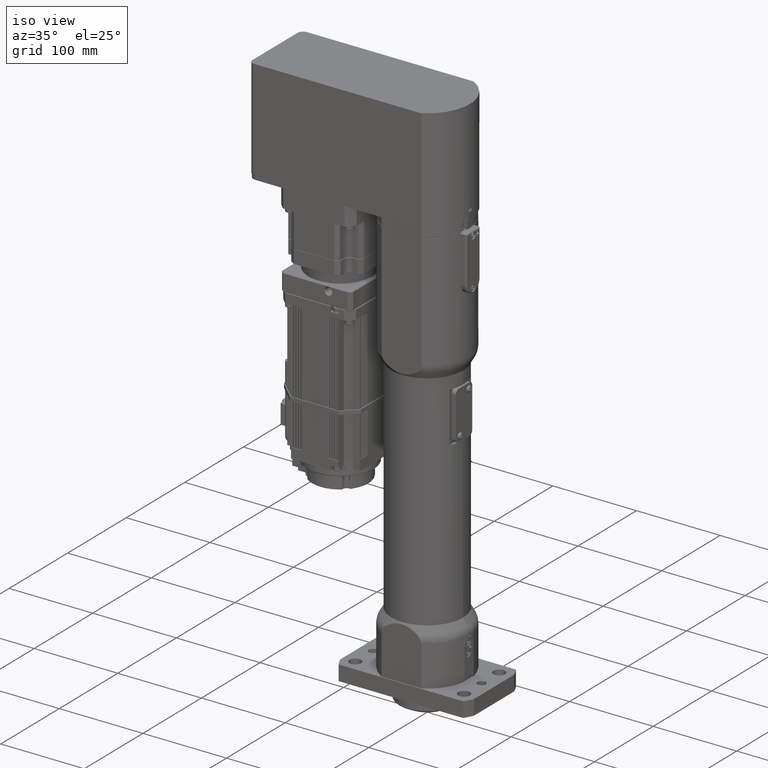
[diagram: clean part render]
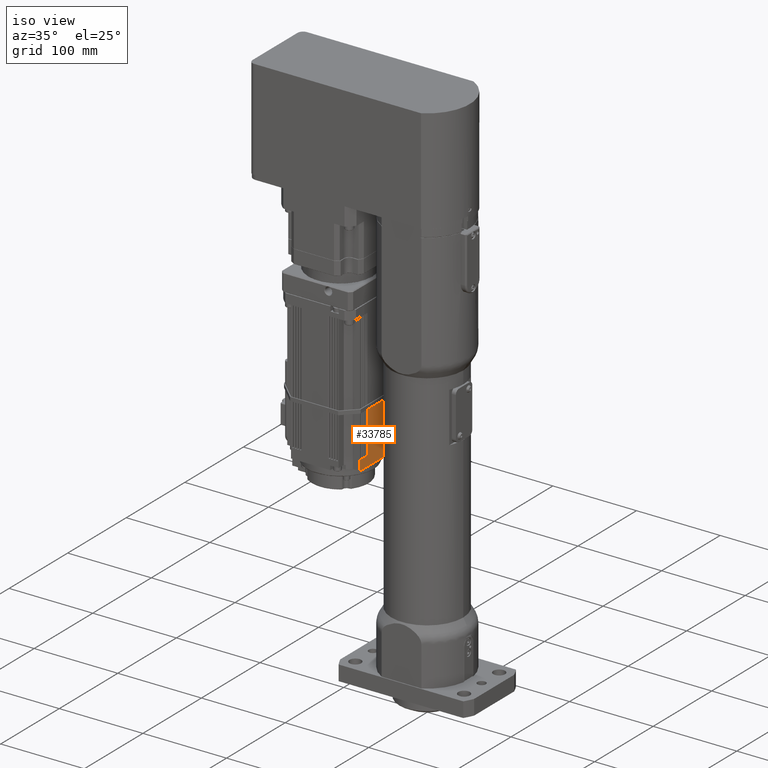
[diagram: same view with one face highlighted and labeled with its STEP entity id]
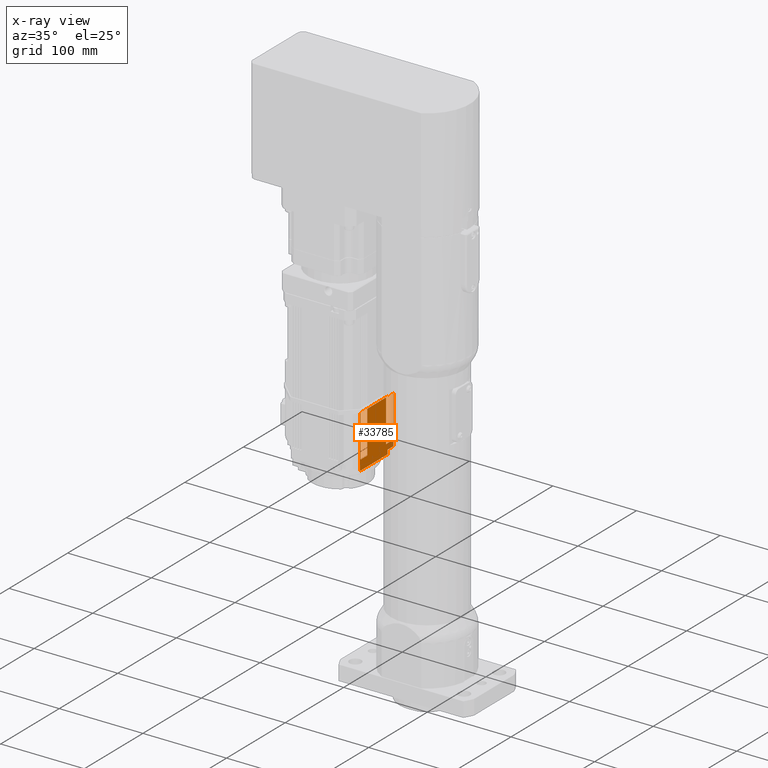
[diagram: x-ray of the same camera — body ghosted, the highlighted face saturated]
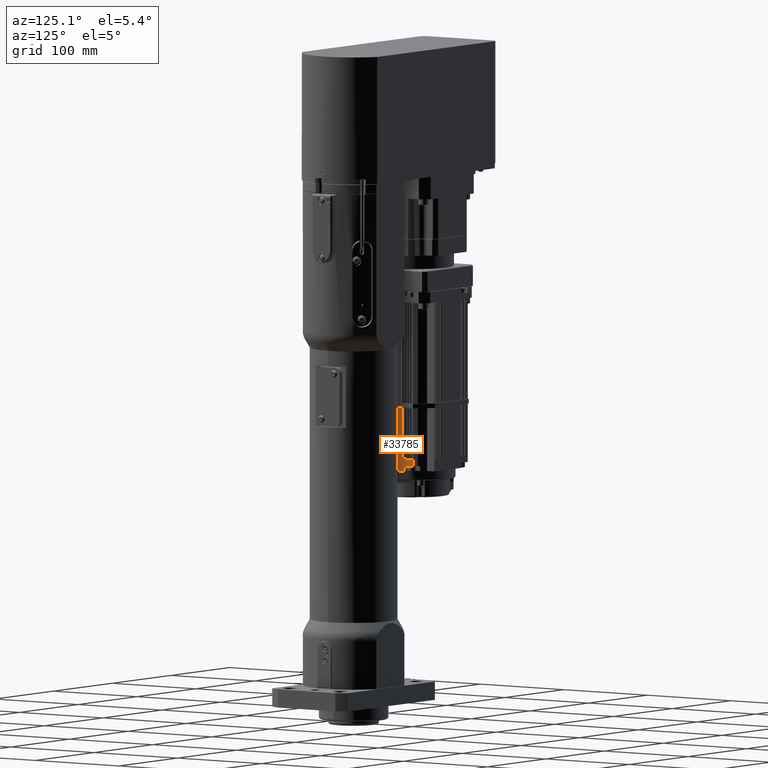
[diagram: same view with one face highlighted and labeled with its STEP entity id]
A machine part, iso view. The second image highlights one B-rep face of the part: STEP entity #33785.
The next image is the same camera in x-ray: the body ghosted, the highlighted face saturated — about 6% of this face is hidden behind the body in this view.
A second angle (auxiliary view) of the same face is appended — the face is thin or edge-on in the first view.
In plain terms, the highlighted planar face has unit normal (1, -0, -0).
Its self-contained STEP definition (entity closure, byte-faithful):
#744=PLANE('',#35872);
#2214=FACE_OUTER_BOUND('',#4037,.T.);
#4037=EDGE_LOOP('',(#22657,#22658,#22659,#22660,#22661,#22662,#22663,#22664,
#22665,#22666,#22667,#22668,#22669,#22670,#22671,#22672,#22673,#22674,#22675,
#22676,#22677,#22678,#22679,#22680,#22681,#22682,#22683,#22684,#22685,#22686,
#22687,#22688,#22689,#22690,#22691,#22692,#22693,#22694));
#8056=LINE('',#51097,#10752);
#8057=LINE('',#51098,#10753);
#8058=LINE('',#51099,#10754);
#8059=LINE('',#51100,#10755);
#8060=LINE('',#51101,#10756);
#8061=LINE('',#51102,#10757);
#8062=LINE('',#51103,#10758);
#8063=LINE('',#51104,#10759);
#8064=LINE('',#51106,#10760);
#8173=LINE('',#51316,#10869);
#8174=LINE('',#51319,#10870);
#8175=LINE('',#51321,#10871);
#8176=LINE('',#51322,#10872);
#8177=LINE('',#51324,#10873);
#8178=LINE('',#51326,#10874);
#8179=LINE('',#51328,#10875);
#8180=LINE('',#51329,#10876);
#8181=LINE('',#51331,#10877);
#8182=LINE('',#51333,#10878);
#8183=LINE('',#51334,#10879);
#8184=LINE('',#51336,#10880);
#8185=LINE('',#51338,#10881);
#8186=LINE('',#51339,#10882);
#8187=LINE('',#51341,#10883);
#8188=LINE('',#51343,#10884);
#8189=LINE('',#51344,#10885);
#8190=LINE('',#51346,#10886);
#8191=LINE('',#51348,#10887);
#8192=LINE('',#51349,#10888);
#8193=LINE('',#51351,#10889);
#8194=LINE('',#51353,#10890);
#8195=LINE('',#51354,#10891);
#8196=LINE('',#51356,#10892);
#8197=LINE('',#51358,#10893);
#8198=LINE('',#51359,#10894);
#8199=LINE('',#51361,#10895);
#8200=LINE('',#51363,#10896);
#8201=LINE('',#51364,#10897);
#10752=VECTOR('',#40334,10.);
#10753=VECTOR('',#40335,10.);
#10754=VECTOR('',#40336,10.);
#10755=VECTOR('',#40337,10.);
#10756=VECTOR('',#40338,10.);
#10757=VECTOR('',#40339,10.);
#10758=VECTOR('',#40340,10.);
#10759=VECTOR('',#40341,10.);
#10760=VECTOR('',#40342,10.);
#10869=VECTOR('',#40473,10.);
#10870=VECTOR('',#40476,10.);
#10871=VECTOR('',#40477,10.);
#10872=VECTOR('',#40478,10.);
#10873=VECTOR('',#40479,10.);
#10874=VECTOR('',#40480,10.);
#10875=VECTOR('',#40481,10.);
#10876=VECTOR('',#40482,10.);
#10877=VECTOR('',#40483,10.);
#10878=VECTOR('',#40484,10.);
#10879=VECTOR('',#40485,10.);
#10880=VECTOR('',#40486,10.);
#10881=VECTOR('',#40487,10.);
#10882=VECTOR('',#40488,10.);
#10883=VECTOR('',#40489,10.);
#10884=VECTOR('',#40490,10.);
#10885=VECTOR('',#40491,10.);
#10886=VECTOR('',#40492,10.);
#10887=VECTOR('',#40493,10.);
#10888=VECTOR('',#40494,10.);
#10889=VECTOR('',#40495,10.);
#10890=VECTOR('',#40496,10.);
#10891=VECTOR('',#40497,10.);
#10892=VECTOR('',#40498,10.);
#10893=VECTOR('',#40499,10.);
#10894=VECTOR('',#40500,10.);
#10895=VECTOR('',#40501,10.);
#10896=VECTOR('',#40502,10.);
#10897=VECTOR('',#40503,10.);
#13443=VERTEX_POINT('',#50710);
#13445=VERTEX_POINT('',#50714);
#13447=VERTEX_POINT('',#50719);
#13449=VERTEX_POINT('',#50723);
#13451=VERTEX_POINT('',#50728);
#13453=VERTEX_POINT('',#50732);
#13455=VERTEX_POINT('',#50737);
#13457=VERTEX_POINT('',#50741);
#13459=VERTEX_POINT('',#50746);
#13461=VERTEX_POINT('',#50750);
#13463=VERTEX_POINT('',#50755);
#13465=VERTEX_POINT('',#50759);
#13467=VERTEX_POINT('',#50764);
#13469=VERTEX_POINT('',#50768);
#13470=VERTEX_POINT('',#50772);
#13472=VERTEX_POINT('',#50775);
#13580=VERTEX_POINT('',#51095);
#13581=VERTEX_POINT('',#51105);
#13653=VERTEX_POINT('',#51314);
#13654=VERTEX_POINT('',#51318);
#13655=VERTEX_POINT('',#51320);
#13656=VERTEX_POINT('',#51323);
#13657=VERTEX_POINT('',#51325);
#13658=VERTEX_POINT('',#51327);
#13659=VERTEX_POINT('',#51330);
#13660=VERTEX_POINT('',#51332);
#13661=VERTEX_POINT('',#51335);
#13662=VERTEX_POINT('',#51337);
#13663=VERTEX_POINT('',#51340);
#13664=VERTEX_POINT('',#51342);
#13665=VERTEX_POINT('',#51345);
#13666=VERTEX_POINT('',#51347);
#13667=VERTEX_POINT('',#51350);
#13668=VERTEX_POINT('',#51352);
#13669=VERTEX_POINT('',#51355);
#13670=VERTEX_POINT('',#51357);
#13671=VERTEX_POINT('',#51360);
#13672=VERTEX_POINT('',#51362);
#17072=EDGE_CURVE('',#13472,#13580,#8056,.T.);
#17073=EDGE_CURVE('',#13467,#13470,#8057,.T.);
#17074=EDGE_CURVE('',#13463,#13469,#8058,.T.);
#17075=EDGE_CURVE('',#13459,#13465,#8059,.T.);
#17076=EDGE_CURVE('',#13455,#13461,#8060,.T.);
#17077=EDGE_CURVE('',#13451,#13457,#8061,.T.);
#17078=EDGE_CURVE('',#13447,#13453,#8062,.T.);
#17079=EDGE_CURVE('',#13443,#13449,#8063,.T.);
#17080=EDGE_CURVE('',#13581,#13445,#8064,.T.);
#17196=EDGE_CURVE('',#13580,#13653,#8173,.T.);
#17197=EDGE_CURVE('',#13654,#13470,#8174,.T.);
#17198=EDGE_CURVE('',#13654,#13655,#8175,.T.);
#17199=EDGE_CURVE('',#13472,#13655,#8176,.T.);
#17200=EDGE_CURVE('',#13656,#13653,#8177,.T.);
#17201=EDGE_CURVE('',#13656,#13657,#8178,.T.);
#17202=EDGE_CURVE('',#13657,#13658,#8179,.T.);
#17203=EDGE_CURVE('',#13658,#13581,#8180,.T.);
#17204=EDGE_CURVE('',#13659,#13445,#8181,.T.);
#17205=EDGE_CURVE('',#13659,#13660,#8182,.T.);
#17206=EDGE_CURVE('',#13443,#13660,#8183,.T.);
#17207=EDGE_CURVE('',#13661,#13449,#8184,.T.);
#17208=EDGE_CURVE('',#13661,#13662,#8185,.T.);
#17209=EDGE_CURVE('',#13447,#13662,#8186,.T.);
#17210=EDGE_CURVE('',#13663,#13453,#8187,.T.);
#17211=EDGE_CURVE('',#13663,#13664,#8188,.T.);
#17212=EDGE_CURVE('',#13451,#13664,#8189,.T.);
#17213=EDGE_CURVE('',#13665,#13457,#8190,.T.);
#17214=EDGE_CURVE('',#13665,#13666,#8191,.T.);
#17215=EDGE_CURVE('',#13455,#13666,#8192,.T.);
#17216=EDGE_CURVE('',#13667,#13461,#8193,.T.);
#17217=EDGE_CURVE('',#13667,#13668,#8194,.T.);
#17218=EDGE_CURVE('',#13459,#13668,#8195,.T.);
#17219=EDGE_CURVE('',#13669,#13465,#8196,.T.);
#17220=EDGE_CURVE('',#13669,#13670,#8197,.T.);
#17221=EDGE_CURVE('',#13463,#13670,#8198,.T.);
#17222=EDGE_CURVE('',#13671,#13469,#8199,.T.);
#17223=EDGE_CURVE('',#13671,#13672,#8200,.T.);
#17224=EDGE_CURVE('',#13467,#13672,#8201,.T.);
#22657=ORIENTED_EDGE('',*,*,#17073,.T.);
#22658=ORIENTED_EDGE('',*,*,#17197,.F.);
#22659=ORIENTED_EDGE('',*,*,#17198,.T.);
#22660=ORIENTED_EDGE('',*,*,#17199,.F.);
#22661=ORIENTED_EDGE('',*,*,#17072,.T.);
#22662=ORIENTED_EDGE('',*,*,#17196,.T.);
#22663=ORIENTED_EDGE('',*,*,#17200,.F.);
#22664=ORIENTED_EDGE('',*,*,#17201,.T.);
#22665=ORIENTED_EDGE('',*,*,#17202,.T.);
#22666=ORIENTED_EDGE('',*,*,#17203,.T.);
#22667=ORIENTED_EDGE('',*,*,#17080,.T.);
#22668=ORIENTED_EDGE('',*,*,#17204,.F.);
#22669=ORIENTED_EDGE('',*,*,#17205,.T.);
#22670=ORIENTED_EDGE('',*,*,#17206,.F.);
#22671=ORIENTED_EDGE('',*,*,#17079,.T.);
#22672=ORIENTED_EDGE('',*,*,#17207,.F.);
#22673=ORIENTED_EDGE('',*,*,#17208,.T.);
#22674=ORIENTED_EDGE('',*,*,#17209,.F.);
#22675=ORIENTED_EDGE('',*,*,#17078,.T.);
#22676=ORIENTED_EDGE('',*,*,#17210,.F.);
#22677=ORIENTED_EDGE('',*,*,#17211,.T.);
#22678=ORIENTED_EDGE('',*,*,#17212,.F.);
#22679=ORIENTED_EDGE('',*,*,#17077,.T.);
#22680=ORIENTED_EDGE('',*,*,#17213,.F.);
#22681=ORIENTED_EDGE('',*,*,#17214,.T.);
#22682=ORIENTED_EDGE('',*,*,#17215,.F.);
#22683=ORIENTED_EDGE('',*,*,#17076,.T.);
#22684=ORIENTED_EDGE('',*,*,#17216,.F.);
#22685=ORIENTED_EDGE('',*,*,#17217,.T.);
#22686=ORIENTED_EDGE('',*,*,#17218,.F.);
#22687=ORIENTED_EDGE('',*,*,#17075,.T.);
#22688=ORIENTED_EDGE('',*,*,#17219,.F.);
#22689=ORIENTED_EDGE('',*,*,#17220,.T.);
#22690=ORIENTED_EDGE('',*,*,#17221,.F.);
#22691=ORIENTED_EDGE('',*,*,#17074,.T.);
#22692=ORIENTED_EDGE('',*,*,#17222,.F.);
#22693=ORIENTED_EDGE('',*,*,#17223,.T.);
#22694=ORIENTED_EDGE('',*,*,#17224,.F.);
#33785=ADVANCED_FACE('',(#2214),#744,.T.);
#35872=AXIS2_PLACEMENT_3D('',#51317,#40474,#40475);
#40334=DIRECTION('',(-2.39794757605661E-14,-1.,1.00722983923807E-14));
#40335=DIRECTION('',(-2.39794757605661E-14,-1.,1.00722983923807E-14));
#40336=DIRECTION('',(-2.39794757605661E-14,-1.,1.00722983923807E-14));
#40337=DIRECTION('',(-2.39794757605661E-14,-1.,1.00722983923807E-14));
#40338=DIRECTION('',(-2.39794757605661E-14,-1.,1.00722983923807E-14));
#40339=DIRECTION('',(-2.39794757605661E-14,-1.,1.00722983923807E-14));
#40340=DIRECTION('',(-2.39794757605661E-14,-1.,1.00722983923807E-14));
#40341=DIRECTION('',(-2.39794757605661E-14,-1.,1.00722983923807E-14));
#40342=DIRECTION('',(-2.39794757605661E-14,-1.,1.00722983923807E-14));
#40473=DIRECTION('',(-5.48319528505112E-14,-1.00722983923794E-14,-1.));
#40474=DIRECTION('center_axis',(1.,-2.39794757605666E-14,-5.4831952850511E-14));
#40475=DIRECTION('ref_axis',(-2.39794757605661E-14,-1.,1.00722983923807E-14));
#40476=DIRECTION('',(5.48319528505112E-14,1.05835178777286E-14,1.));
#40477=DIRECTION('',(-2.3979475760566E-14,-1.,1.058351787773E-14));
#40478=DIRECTION('',(-5.48319528505112E-14,-1.04104961076572E-14,-1.));
#40479=DIRECTION('',(-2.39794757605661E-14,-1.,1.00722983923807E-14));
#40480=DIRECTION('',(5.48319528505112E-14,1.00722983923794E-14,1.));
#40481=DIRECTION('',(2.39794757605661E-14,1.,-1.00722983923807E-14));
#40482=DIRECTION('',(5.48319528505112E-14,1.00722983923794E-14,1.));
#40483=DIRECTION('',(5.48319528505112E-14,1.05402624352108E-14,1.));
#40484=DIRECTION('',(-2.3979475760566E-14,-1.,1.058351787773E-14));
#40485=DIRECTION('',(-5.48319528505112E-14,-1.05258439543715E-14,-1.));
#40486=DIRECTION('',(5.48319528505112E-14,1.06267733202465E-14,1.));
#40487=DIRECTION('',(-2.3979475760566E-14,-1.,1.058351787773E-14));
#40488=DIRECTION('',(-5.48319528505112E-14,-1.05546809160501E-14,-1.));
#40489=DIRECTION('',(5.48319528505112E-14,1.09872353412287E-14,1.));
#40490=DIRECTION('',(-2.3979475760566E-14,-1.,1.058351787773E-14));
#40491=DIRECTION('',(-5.48319528505112E-14,-1.09583983795501E-14,-1.));
#40492=DIRECTION('',(5.48319528505112E-14,1.08430505328358E-14,1.));
#40493=DIRECTION('',(-2.3979475760566E-14,-1.,1.058351787773E-14));
#40494=DIRECTION('',(-5.48319528505112E-14,-1.06988657244429E-14,-1.));
#40495=DIRECTION('',(5.48319528505112E-14,1.05258439543715E-14,1.));
#40496=DIRECTION('',(-2.3979475760566E-14,-1.,1.058351787773E-14));
#40497=DIRECTION('',(-5.48319528505112E-14,-1.04681700310143E-14,-1.));
#40498=DIRECTION('',(5.48319528505112E-14,1.00644525675143E-14,1.));
#40499=DIRECTION('',(-2.3979475760566E-14,-1.,1.058351787773E-14));
#40500=DIRECTION('',(-5.48319528505112E-14,-1.00644525675143E-14,-1.));
#40501=DIRECTION('',(5.48319528505112E-14,1.05258439543715E-14,1.));
#40502=DIRECTION('',(-2.3979475760566E-14,-1.,1.058351787773E-14));
#40503=DIRECTION('',(-5.48319528505112E-14,-1.05258439543715E-14,-1.));
#50710=CARTESIAN_POINT('',(-60.4969330410381,24.8999999999754,269.000000000001));
#50714=CARTESIAN_POINT('',(-60.496933041038,27.5999999999754,269.000000000001));
#50719=CARTESIAN_POINT('',(-60.4969330410382,21.8999999999754,269.000000000001));
#50723=CARTESIAN_POINT('',(-60.4969330410381,24.5999999999754,269.000000000001));
#50728=CARTESIAN_POINT('',(-60.4969330410383,18.8999999999754,269.000000000001));
#50732=CARTESIAN_POINT('',(-60.4969330410382,21.5999999999754,269.000000000001));
#50737=CARTESIAN_POINT('',(-60.4969330410383,15.8999999999754,269.000000000001));
#50741=CARTESIAN_POINT('',(-60.4969330410383,18.5999999999754,269.000000000001));
#50746=CARTESIAN_POINT('',(-60.4969330410392,-18.6000000000246,269.000000000002));
#50750=CARTESIAN_POINT('',(-60.4969330410391,-15.9000000000246,269.000000000002));
#50755=CARTESIAN_POINT('',(-60.4969330410392,-21.6000000000246,269.000000000002));
#50759=CARTESIAN_POINT('',(-60.4969330410392,-18.9000000000246,269.000000000002));
#50764=CARTESIAN_POINT('',(-60.4969330410393,-24.6000000000246,269.000000000002));
#50768=CARTESIAN_POINT('',(-60.4969330410392,-21.9000000000246,269.000000000002));
#50772=CARTESIAN_POINT('',(-60.4969330410393,-24.9000000000246,269.000000000002));
#50775=CARTESIAN_POINT('',(-60.4969330410394,-27.6000000000246,269.000000000002));
#51095=CARTESIAN_POINT('',(-60.4969330410394,-28.5000000000246,269.000000000002));
#51097=CARTESIAN_POINT('',(-60.4969330410383,17.6334199745578,269.000000000001));
#51098=CARTESIAN_POINT('',(-60.4969330410383,17.6334199745578,269.000000000001));
#51099=CARTESIAN_POINT('',(-60.4969330410383,17.6334199745578,269.000000000001));
#51100=CARTESIAN_POINT('',(-60.4969330410383,17.6334199745578,269.000000000001));
#51101=CARTESIAN_POINT('',(-60.4969330410383,17.6334199745578,269.000000000001));
#51102=CARTESIAN_POINT('',(-60.4969330410383,17.6334199745578,269.000000000001));
#51103=CARTESIAN_POINT('',(-60.4969330410383,17.6334199745578,269.000000000001));
#51104=CARTESIAN_POINT('',(-60.4969330410383,17.6334199745578,269.000000000001));
#51105=CARTESIAN_POINT('',(-60.496933041038,28.4999999999754,269.000000000001));
#51106=CARTESIAN_POINT('',(-60.4969330410383,17.6334199745578,269.000000000001));
#51314=CARTESIAN_POINT('',(-60.4969330410428,-28.5000000000252,206.500000000002));
#51316=CARTESIAN_POINT('',(-60.496933041038,-28.5000000000243,295.000000000002));
#51317=CARTESIAN_POINT('Origin',(-60.4969330410316,35.2668399491413,383.500000000001));
#51318=CARTESIAN_POINT('',(-60.4969330410421,-24.9000000000252,218.500000000002));
#51319=CARTESIAN_POINT('',(-60.4969330410333,-24.9000000000235,378.000000000002));
#51320=CARTESIAN_POINT('',(-60.4969330410422,-27.6000000000251,218.500000000002));
#51321=CARTESIAN_POINT('',(-60.4969330410414,4.88341997455719,218.500000000001));
#51322=CARTESIAN_POINT('',(-60.4969330410376,-27.6000000000243,301.000000000002));
#51323=CARTESIAN_POINT('',(-60.4969330410417,18.4999999999748,206.500000000001));
#51324=CARTESIAN_POINT('',(-60.4969330410413,35.2668399491395,206.500000000001));
#51325=CARTESIAN_POINT('',(-60.4969330410414,18.4999999999748,211.500000000001));
#51326=CARTESIAN_POINT('',(-60.4969330410368,18.4999999999757,295.000000000001));
#51327=CARTESIAN_POINT('',(-60.4969330410412,28.4999999999748,211.500000000001));
#51328=CARTESIAN_POINT('',(-60.4969330410412,29.769869568344,211.500000000001));
#51329=CARTESIAN_POINT('',(-60.4969330410366,28.4999999999757,295.000000000001));
#51330=CARTESIAN_POINT('',(-60.4969330410408,27.5999999999749,218.500000000001));
#51331=CARTESIAN_POINT('',(-60.4969330410321,27.5999999999765,378.000000000001));
#51332=CARTESIAN_POINT('',(-60.4969330410409,24.8999999999749,218.500000000001));
#51333=CARTESIAN_POINT('',(-60.4969330410407,31.1334199745572,218.500000000001));
#51334=CARTESIAN_POINT('',(-60.4969330410364,24.8999999999757,301.000000000001));
#51335=CARTESIAN_POINT('',(-60.4969330410409,24.5999999999749,218.500000000001));
#51336=CARTESIAN_POINT('',(-60.4969330410322,24.5999999999766,378.000000000001));
#51337=CARTESIAN_POINT('',(-60.496933041041,21.8999999999749,218.500000000001));
#51338=CARTESIAN_POINT('',(-60.4969330410408,29.6334199745572,218.500000000001));
#51339=CARTESIAN_POINT('',(-60.4969330410364,21.8999999999757,301.000000000001));
#51340=CARTESIAN_POINT('',(-60.496933041041,21.5999999999748,218.500000000001));
#51341=CARTESIAN_POINT('',(-60.4969330410322,21.5999999999766,378.000000000001));
#51342=CARTESIAN_POINT('',(-60.496933041041,18.8999999999748,218.500000000001));
#51343=CARTESIAN_POINT('',(-60.4969330410408,28.1334199745572,218.500000000001));
#51344=CARTESIAN_POINT('',(-60.4969330410365,18.8999999999757,301.000000000001));
#51345=CARTESIAN_POINT('',(-60.496933041041,18.5999999999749,218.500000000001));
#51346=CARTESIAN_POINT('',(-60.4969330410323,18.5999999999766,378.000000000001));
#51347=CARTESIAN_POINT('',(-60.4969330410411,15.8999999999749,218.500000000001));
#51348=CARTESIAN_POINT('',(-60.4969330410408,26.6334199745572,218.500000000001));
#51349=CARTESIAN_POINT('',(-60.4969330410366,15.8999999999758,301.000000000001));
#51350=CARTESIAN_POINT('',(-60.4969330410419,-15.9000000000252,218.500000000002));
#51351=CARTESIAN_POINT('',(-60.4969330410331,-15.9000000000235,378.000000000002));
#51352=CARTESIAN_POINT('',(-60.4969330410419,-18.6000000000252,218.500000000002));
#51353=CARTESIAN_POINT('',(-60.4969330410413,9.38341997455718,218.500000000001));
#51354=CARTESIAN_POINT('',(-60.4969330410374,-18.6000000000243,301.000000000002));
#51355=CARTESIAN_POINT('',(-60.4969330410419,-18.9000000000251,218.500000000002));
#51356=CARTESIAN_POINT('',(-60.4969330410332,-18.9000000000235,378.000000000002));
#51357=CARTESIAN_POINT('',(-60.496933041042,-21.6000000000251,218.500000000002));
#51358=CARTESIAN_POINT('',(-60.4969330410413,7.88341997455722,218.500000000001));
#51359=CARTESIAN_POINT('',(-60.4969330410375,-21.6000000000243,301.000000000002));
#51360=CARTESIAN_POINT('',(-60.496933041042,-21.9000000000252,218.500000000002));
#51361=CARTESIAN_POINT('',(-60.4969330410333,-21.9000000000235,378.000000000002));
#51362=CARTESIAN_POINT('',(-60.4969330410421,-24.6000000000252,218.500000000002));
#51363=CARTESIAN_POINT('',(-60.4969330410413,6.38341997455719,218.500000000001));
#51364=CARTESIAN_POINT('',(-60.4969330410375,-24.6000000000243,301.000000000002));